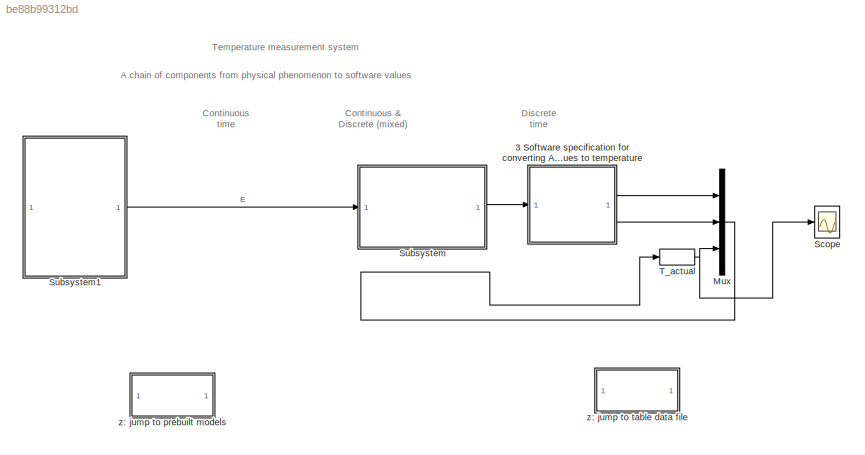
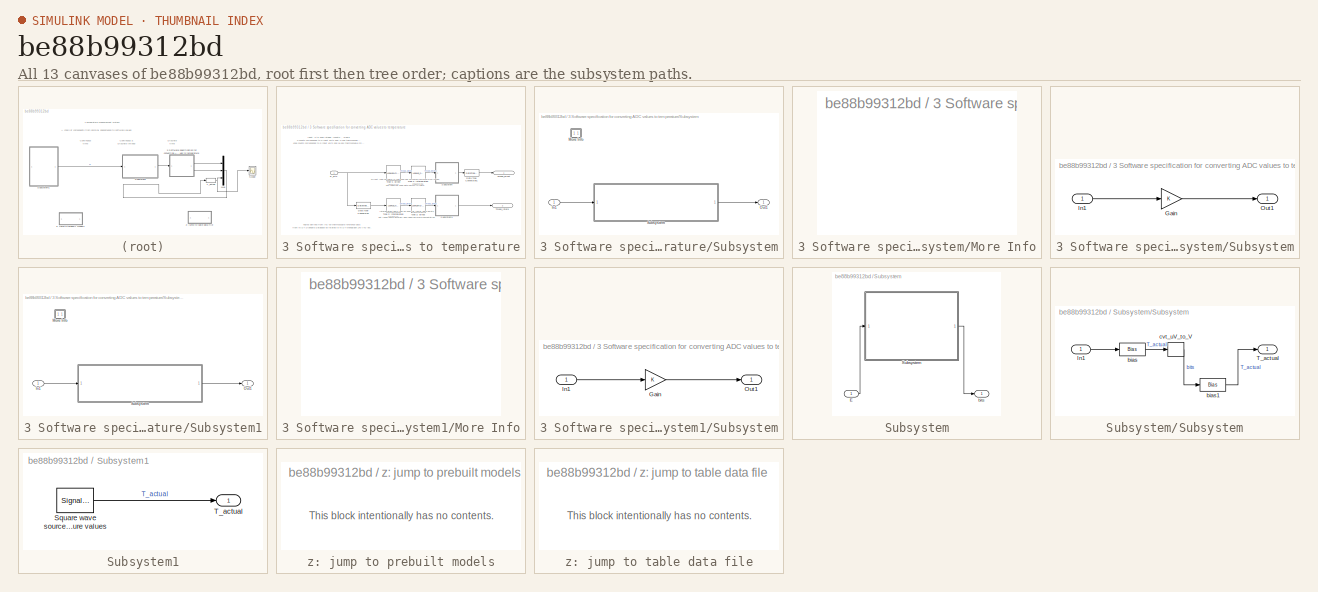
[diagram: thumbnail index - all 13 canvases of the model, root first then tree order]
MODEL slx_be88b99312bd
KIND model
CONFIG AbsTol = auto
CONFIG EnableMultiTasking = off
CONFIG FixedStep = 0.005
CONFIG MaxStep = auto
CONFIG MinStep = auto
CONFIG RelTol = 1e-3
CONFIG SampleTimeConstraint = Unconstrained
CONFIG SolverName = ode3
CONFIG StartFcn = set_param('sldemo_tc/Scope','Open','on')
CONFIG StartTime = 0.0
CONFIG StopTime = 10.0
WORKSPACE source: mxarray member
WORKSPACE TypeS_E_Volts = [-0.000236 -0.000232 -0.000228 -0.000224 -0.000219 -0.000215 -0.000211 -0.000207 -0.000203 -0.000199 -0.000194 -0.00019 ... (1816 elements, 1816x1)]
WORKSPACE TypeS_T_degC = [-50 -49 -48 -47 -46 -45 -44 -43 -42 -41 -40 -39 ... (1816 elements, 1816x1)]
WORKSPACE TypeS_bits_bp = [0 50 100 150 200 250 300 350 400 450 500 550 ... (83 elements, 83x1)]
WORKSPACE TypeS_tdegc_interp = [-50 -1.05395507812 38.4789352417 73.4326858521 105.529296875 135.797668457 164.757202148 192.63710022 219.712234497 246.231826782 272.095336914 297.6043396 ... (83 elements, 83x1)]
WORKSPACE TypeS_tdegc_vs_bits = [-50 -48.8466186523 -47.6932373047 -46.6318855286 -45.6364746094 -44.4830932617 -43.3297119141 -42.1763305664 -41.0229492188 -40.0956535339 -38.9661865234 -37.8502426147 ... (4096 elements, 4096x1)]
WORKSPACE e_vs_counts = [-0.236 -0.231386474609 -0.226772949219 -0.222159423828 -0.217545898437 -0.212932373047 -0.208318847656 -0.203705322266 -0.199091796875 -0.194478271484 -0.189864746094 -0.185251220703 ... (4096 elements, 4096x1)]
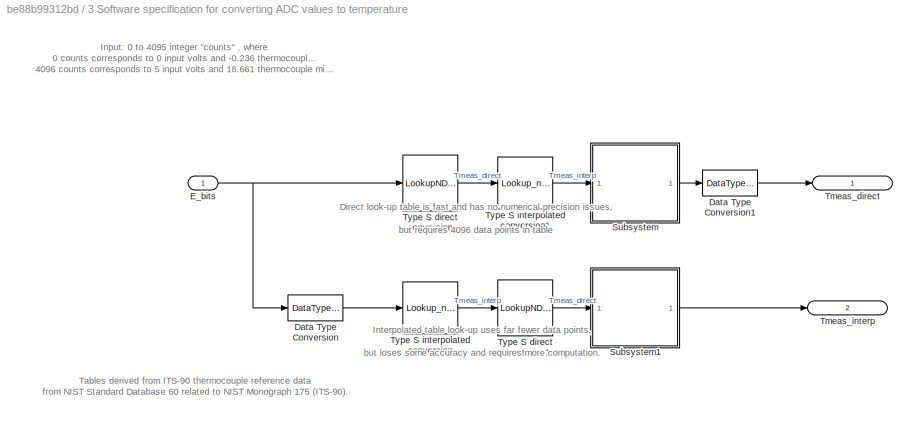
BLOCK [SubSystem] 3 Software specification for converting ADC values to temperature
BLOCK [DataTypeConversion] 3 Software specification for converting ADC values to temperature/Data Type Conversion
  OutDataTypeStr = single
  RndMeth = Floor
  SaturateOnIntegerOverflow = off
BLOCK [DataTypeConversion] 3 Software specification for converting ADC values to temperature/Data Type Conversion1
  OutDataTypeStr = single
  RndMeth = Floor
  SaturateOnIntegerOverflow = off
BLOCK [Inport] 3 Software specification for converting ADC values to temperature/E_bits
  OutDataTypeStr = uint16
  SignalType = real
  Unit = count
BLOCK [SubSystem] 3 Software specification for converting ADC values to temperature/Subsystem
BLOCK [Inport] 3 Software specification for converting ADC values to temperature/Subsystem/In1
BLOCK [SubSystem] 3 Software specification for converting ADC values to temperature/Subsystem/More Info
  OpenFcn = showExample('simulink_general/sldemo_tc_scriptExample')
BLOCK [Outport] 3 Software specification for converting ADC values to temperature/Subsystem/Out1
BLOCK [SubSystem] 3 Software specification for converting ADC values to temperature/Subsystem/Subsystem
BLOCK [Gain] 3 Software specification for converting ADC values to temperature/Subsystem/Subsystem/Gain
BLOCK [Inport] 3 Software specification for converting ADC values to temperature/Subsystem/Subsystem/In1
BLOCK [Outport] 3 Software specification for converting ADC values to temperature/Subsystem/Subsystem/Out1
BLOCK [SubSystem] 3 Software specification for converting ADC values to temperature/Subsystem1
BLOCK [Inport] 3 Software specification for converting ADC values to temperature/Subsystem1/In1
BLOCK [SubSystem] 3 Software specification for converting ADC values to temperature/Subsystem1/More Info
  OpenFcn = showExample('simulink_general/sldemo_tc_scriptExample')
BLOCK [Outport] 3 Software specification for converting ADC values to temperature/Subsystem1/Out1
BLOCK [SubSystem] 3 Software specification for converting ADC values to temperature/Subsystem1/Subsystem
BLOCK [Gain] 3 Software specification for converting ADC values to temperature/Subsystem1/Subsystem/Gain
BLOCK [Inport] 3 Software specification for converting ADC values to temperature/Subsystem1/Subsystem/In1
BLOCK [Outport] 3 Software specification for converting ADC values to temperature/Subsystem1/Subsystem/Out1
BLOCK [Outport] 3 Software specification for converting ADC values to temperature/Tmeas_direct
  IconDisplay = Port number and signal name
  Unit = degC
  VectorParamsAs1DForOutWhenUnconnected = off
BLOCK [Outport] 3 Software specification for converting ADC values to temperature/Tmeas_interp
  IconDisplay = Port number and signal name
  Port = 2
  Unit = degC
  VectorParamsAs1DForOutWhenUnconnected = off
BLOCK [LookupNDDirect] 3 Software specification for converting ADC values to temperature/Type S direct conversion
  AttributesFormatString = (%<mxTable>)
  NumberOfTableDimensions = 1
  Table = TypeS_tdegc_vs_bits
BLOCK [LookupNDDirect] 3 Software specification for converting ADC values to temperature/Type S direct conversion1
  AttributesFormatString = (%<mxTable>)
  NumberOfTableDimensions = 1
  Table = TypeS_tdegc_vs_bits
BLOCK [Lookup_n-D] 3 Software specification for converting ADC values to temperature/Type S interpolated conversion
  AttributesFormatString = (%<tableData>)
  BeginIndexSearchUsingPreviousIndexResult = on
  BreakpointsForDimension1 = TypeS_bits_bp
  DiagnosticForOutOfRangeInput = Warning
  ExtrapMethod = Clip
  IndexSearchMethod = Linear search
  InputPortMap = u0
  InternalRulePriority = Speed
  NumberOfTableDimensions = 1
  RndMeth = Simplest
  Table = TypeS_tdegc_interp
BLOCK [Lookup_n-D] 3 Software specification for converting ADC values to temperature/Type S interpolated conversion1
  AttributesFormatString = (%<tableData>)
  BeginIndexSearchUsingPreviousIndexResult = on
  BreakpointsForDimension1 = TypeS_bits_bp
  DiagnosticForOutOfRangeInput = Warning
  ExtrapMethod = Clip
  IndexSearchMethod = Linear search
  InputPortMap = u0
  InternalRulePriority = Speed
  NumberOfTableDimensions = 1
  RndMeth = Simplest
  Table = TypeS_tdegc_interp
BLOCK [Mux] Mux
  DisplayOption = bar
  Inputs = 3
BLOCK [Scope] Scope
  Floating = off
  NumInputPorts = 1
  ScopeSpecificationString = Simulink.scopes.TimeScopeBlockCfg('CurrentConfiguration', extmgr.ConfigurationSet(extmgr.Configuration('Core','General UI',true),extmgr.Configuration('Core','Source UI',true),extmgr.Configuration('Sources','WiredSimulink',true,'DataLoggingSaveFormat','StructureWithTime','DataLoggingLimitDataPoints',true,'DataLoggingDecimation','1','DataLoggingDecimateData',true),extmgr.Configuration('Visuals','Tim...<+1643ch>
BLOCK [SubSystem] Subsystem
BLOCK [Inport] Subsystem/E
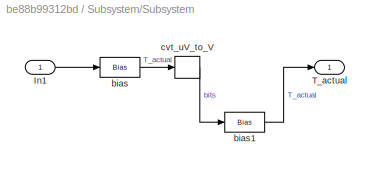
BLOCK [SubSystem] Subsystem/Subsystem
BLOCK [Inport] Subsystem/Subsystem/In1
BLOCK [Outport] Subsystem/Subsystem/T_actual
BLOCK [Bias] Subsystem/Subsystem/bias
  Bias = 100
  SaturateOnIntegerOverflow = off
BLOCK [Bias] Subsystem/Subsystem/bias1
  Bias = 100
  SaturateOnIntegerOverflow = off
BLOCK [UnitConversion] Subsystem/Subsystem/cvt_uV_to_V
BLOCK [Outport] Subsystem/bits
BLOCK [SubSystem] Subsystem1
BLOCK [SignalGenerator] Subsystem1/Square wave source for generating temperature values
  Amplitude = 100
  WaveForm = square
BLOCK [Outport] Subsystem1/T_actual
BLOCK [DataTypeConversion] T_actual
  OutDataTypeStr = single
  RndMeth = Floor
  SaturateOnIntegerOverflow = off
BLOCK [SubSystem] z: jump to prebuilt models
  OpenFcn = open_system('sldemo_tc_blocks','force')
BLOCK [SubSystem] z: jump to table data file
  OpenFcn = edit sldemo_create_tc_tabledata.m
ANNOTATION (root): A chain of components from physical phenomenon to software values
ANNOTATION (root): Continuous time
ANNOTATION (root): Continuous & Discrete (mixed)
ANNOTATION (root): Discrete time
ANNOTATION (root): Temperature measurement system
ANNOTATION 3 Software specification for converting ADC values to temperature: Direct look-up table is fast and has no numerical precision issues, but requires 4096 data points in table
ANNOTATION 3 Software specification for converting ADC values to temperature: Input: 0 to 4095 integer "counts" , where 0 counts corresponds to 0 input volts and -0.236 thermocouple millivolts 4096 counts corresponds to 5 input volts and 18.661 thermocouple millivolts
ANNOTATION 3 Software specification for converting ADC values to temperature: Interpolated table look-up uses far fewer data points, but loses some accuracy and requires more computation.
ANNOTATION 3 Software specification for converting ADC values to temperature: Tables derived from ITS-90 thermocouple reference data from NIST Standard Database 60 related to NIST Monograph 175 (ITS-90).
ANNOTATION z: jump to prebuilt models: This block intentionally has no contents.
ANNOTATION z: jump to table data file: This block intentionally has no contents.
LINE 3 Software specification for converting ADC values to temperature/Data Type Conversion1:1 -> 3 Software specification for converting ADC values to temperature/Tmeas_direct:1
LINE 3 Software specification for converting ADC values to temperature/Data Type Conversion:1 -> 3 Software specification for converting ADC values to temperature/Type S interpolated conversion:1
NET 3 Software specification for converting ADC values to temperature/E_bits:1 -> 3 Software specification for converting ADC values to temperature/Data Type Conversion:1, 3 Software specification for converting ADC values to temperature/Type S direct conversion:1
LINE 3 Software specification for converting ADC values to temperature/Subsystem/In1:1 -> 3 Software specification for converting ADC values to temperature/Subsystem/Subsystem:1
LINE 3 Software specification for converting ADC values to temperature/Subsystem/Subsystem/Gain:1 -> 3 Software specification for converting ADC values to temperature/Subsystem/Subsystem/Out1:1
LINE 3 Software specification for converting ADC values to temperature/Subsystem/Subsystem/In1:1 -> 3 Software specification for converting ADC values to temperature/Subsystem/Subsystem/Gain:1
LINE 3 Software specification for converting ADC values to temperature/Subsystem/Subsystem:1 -> 3 Software specification for converting ADC values to temperature/Subsystem/Out1:1
LINE 3 Software specification for converting ADC values to temperature/Subsystem1/In1:1 -> 3 Software specification for converting ADC values to temperature/Subsystem1/Subsystem:1
LINE 3 Software specification for converting ADC values to temperature/Subsystem1/Subsystem/Gain:1 -> 3 Software specification for converting ADC values to temperature/Subsystem1/Subsystem/Out1:1
LINE 3 Software specification for converting ADC values to temperature/Subsystem1/Subsystem/In1:1 -> 3 Software specification for converting ADC values to temperature/Subsystem1/Subsystem/Gain:1
LINE 3 Software specification for converting ADC values to temperature/Subsystem1/Subsystem:1 -> 3 Software specification for converting ADC values to temperature/Subsystem1/Out1:1
LINE 3 Software specification for converting ADC values to temperature/Subsystem1:1 -> 3 Software specification for converting ADC values to temperature/Tmeas_interp:1
LINE 3 Software specification for converting ADC values to temperature/Subsystem:1 -> 3 Software specification for converting ADC values to temperature/Data Type Conversion1:1
LINE 3 Software specification for converting ADC values to temperature/Type S direct conversion1:1 -> 3 Software specification for converting ADC values to temperature/Subsystem1:1
LINE 3 Software specification for converting ADC values to temperature/Type S direct conversion:1 -> 3 Software specification for converting ADC values to temperature/Type S interpolated conversion1:1
LINE 3 Software specification for converting ADC values to temperature/Type S interpolated conversion1:1 -> 3 Software specification for converting ADC values to temperature/Subsystem:1
LINE 3 Software specification for converting ADC values to temperature/Type S interpolated conversion:1 -> 3 Software specification for converting ADC values to temperature/Type S direct conversion1:1
LINE 3 Software specification for converting ADC values to temperature:1 -> Mux:1
LINE 3 Software specification for converting ADC values to temperature:2 -> Mux:2
LINE Mux:1 -> T_actual:1
LINE Subsystem/E:1 -> Subsystem/Subsystem:1
LINE Subsystem/Subsystem/In1:1 -> Subsystem/Subsystem/bias:1
LINE Subsystem/Subsystem/bias1:1 -> Subsystem/Subsystem/T_actual:1
LINE Subsystem/Subsystem/bias:1 -> Subsystem/Subsystem/cvt_uV_to_V:1
LINE Subsystem/Subsystem/cvt_uV_to_V:1 -> Subsystem/Subsystem/bias1:1
LINE Subsystem/Subsystem:1 -> Subsystem/bits:1
LINE Subsystem1/Square wave source for generating temperature values:1 -> Subsystem1/T_actual:1
LINE Subsystem1:1 -> Subsystem:1
LINE Subsystem:1 -> 3 Software specification for converting ADC values to temperature:1
NET T_actual:1 -> Mux:3, Scope:1
note: NET lines group one-source signal fan-out (src -> all destinations, sorted); 1:1 wires keep LINE
